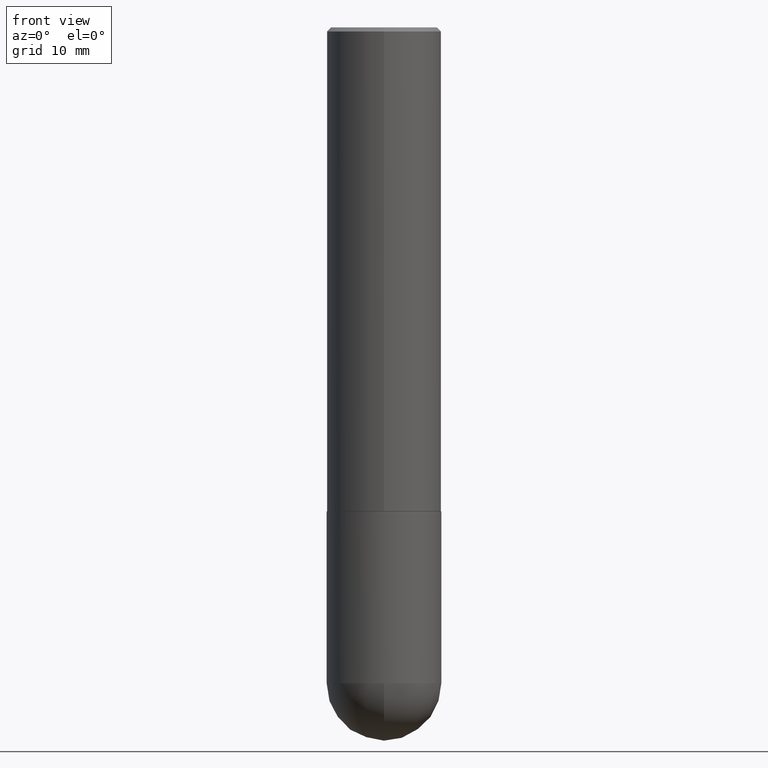
[diagram: clean part render]
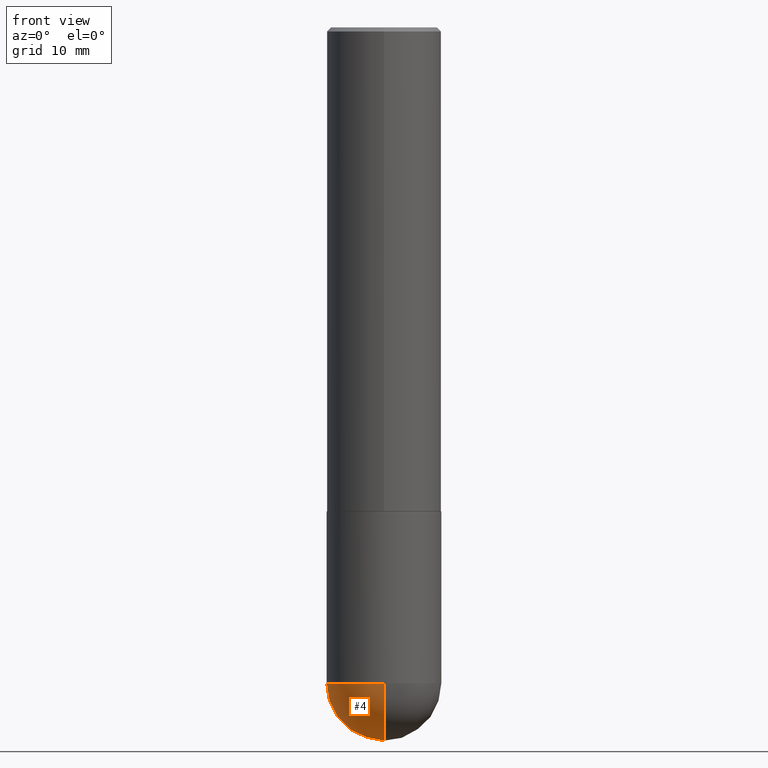
[diagram: same view with one face highlighted and labeled with its STEP entity id]
A machine part, front view. The second image highlights one B-rep face of the part: STEP entity #4.
In plain terms, the highlighted spherical surface has radius 7.1438 mm.
Its self-contained STEP definition (entity closure, byte-faithful):
#3 = ORIENTED_EDGE ( 'NONE', *, *, #107, .F. ) ;
#4 = ADVANCED_FACE ( 'NONE', ( #151 ), #384, .T. ) ;
#11 = CARTESIAN_POINT ( 'NONE',  ( -1.998401444325206042E-15, -0.2812500000000116573, -3.218749999999998668 ) ) ;
#13 = DIRECTION ( 'NONE',  ( -2.445468806185136597E-29, 3.491481338843145583E-15, 1.000000000000000000 ) ) ;
#27 = VERTEX_POINT ( 'NONE', #286 ) ;
#58 = EDGE_CURVE ( 'NONE', #374, #209, #139, .T. ) ;
#66 = CARTESIAN_POINT ( 'NONE',  ( 7.540232941994521053E-29, -1.171238792754142562E-14, -3.218749999999999556 ) ) ;
#68 = AXIS2_PLACEMENT_3D ( 'NONE', #134, #367, #175 ) ;
#97 = DIRECTION ( 'NONE',  ( 6.982962677686265133E-15, 1.000000000000000000, 0.000000000000000000 ) ) ;
#105 = ORIENTED_EDGE ( 'NONE', *, *, #340, .T. ) ;
#107 = EDGE_CURVE ( 'NONE', #27, #368, #280, .T. ) ;
#109 = ORIENTED_EDGE ( 'NONE', *, *, #58, .F. ) ;
#114 = CARTESIAN_POINT ( 'NONE',  ( 7.871352719908407300E-29, -1.123820555940137375E-14, -3.218749999999999556 ) ) ;
#134 = CARTESIAN_POINT ( 'NONE',  ( 7.540232941994521053E-29, -1.171238792754142562E-14, -3.218749999999999556 ) ) ;
#139 = CIRCLE ( 'NONE', #270, 0.2812500000000000555 ) ;
#151 = FACE_OUTER_BOUND ( 'NONE', #155, .T. ) ;
#155 = EDGE_LOOP ( 'NONE', ( #3, #105, #109, #226 ) ) ;
#174 = CARTESIAN_POINT ( 'NONE',  ( -0.2812500000000000555, -7.766835425251639371E-15, -3.218749999999999556 ) ) ;
#175 = DIRECTION ( 'NONE',  ( -7.105427357601001859E-15, -1.000000000000000000, 0.000000000000000000 ) ) ;
#182 = DIRECTION ( 'NONE',  ( 6.982962677686265922E-15, 1.000000000000000000, -3.885294924322502955E-15 ) ) ;
#205 = AXIS2_PLACEMENT_3D ( 'NONE', #356, #238, #97 ) ;
#209 = VERTEX_POINT ( 'NONE', #11 ) ;
#226 = ORIENTED_EDGE ( 'NONE', *, *, #279, .F. ) ;
#238 = DIRECTION ( 'NONE',  ( 1.000000000000000000, -6.982962677686265922E-15, 4.883557194083112340E-29 ) ) ;
#241 = CIRCLE ( 'NONE', #68, 0.2812500000000003331 ) ;
#256 = CIRCLE ( 'NONE', #371, 0.2812500000000000555 ) ;
#267 = DIRECTION ( 'NONE',  ( 1.000000000000000000, -6.982962677686268288E-15, 0.000000000000000000 ) ) ;
#270 = AXIS2_PLACEMENT_3D ( 'NONE', #296, #13, #267 ) ;
#275 = DIRECTION ( 'NONE',  ( -2.445468806185136597E-29, 3.491481338843145583E-15, 1.000000000000000000 ) ) ;
#279 = EDGE_CURVE ( 'NONE', #368, #374, #256, .T. ) ;
#280 = CIRCLE ( 'NONE', #205, 0.2812500000000003331 ) ;
#286 = CARTESIAN_POINT ( 'NONE',  ( 8.240046819675677659E-29, -1.267714545847805119E-14, -3.500000000000000000 ) ) ;
#296 = CARTESIAN_POINT ( 'NONE',  ( 7.871352719908407300E-29, -1.123820555940137375E-14, -3.218749999999999556 ) ) ;
#340 = EDGE_CURVE ( 'NONE', #27, #209, #241, .T. ) ;
#356 = CARTESIAN_POINT ( 'NONE',  ( 7.540232941994521053E-29, -1.171238792754142562E-14, -3.218749999999999556 ) ) ;
#366 = CARTESIAN_POINT ( 'NONE',  ( 1.963958253099340610E-15, 0.2812499999999886757, -3.218750000000000888 ) ) ;
#367 = DIRECTION ( 'NONE',  ( -1.000000000000000000, 7.105427357601001070E-15, -4.926315508542082329E-29 ) ) ;
#368 = VERTEX_POINT ( 'NONE', #366 ) ;
#371 = AXIS2_PLACEMENT_3D ( 'NONE', #114, #275, #400 ) ;
#374 = VERTEX_POINT ( 'NONE', #174 ) ;
#384 = SPHERICAL_SURFACE ( 'NONE', #385, 0.2812500000000003331 ) ;
#385 = AXIS2_PLACEMENT_3D ( 'NONE', #66, #409, #182 ) ;
#400 = DIRECTION ( 'NONE',  ( 1.000000000000000000, -6.982962677686268288E-15, 0.000000000000000000 ) ) ;
#409 = DIRECTION ( 'NONE',  ( -1.000000000000000000, 6.982962677686265922E-15, -4.883557194083112901E-29 ) ) ;